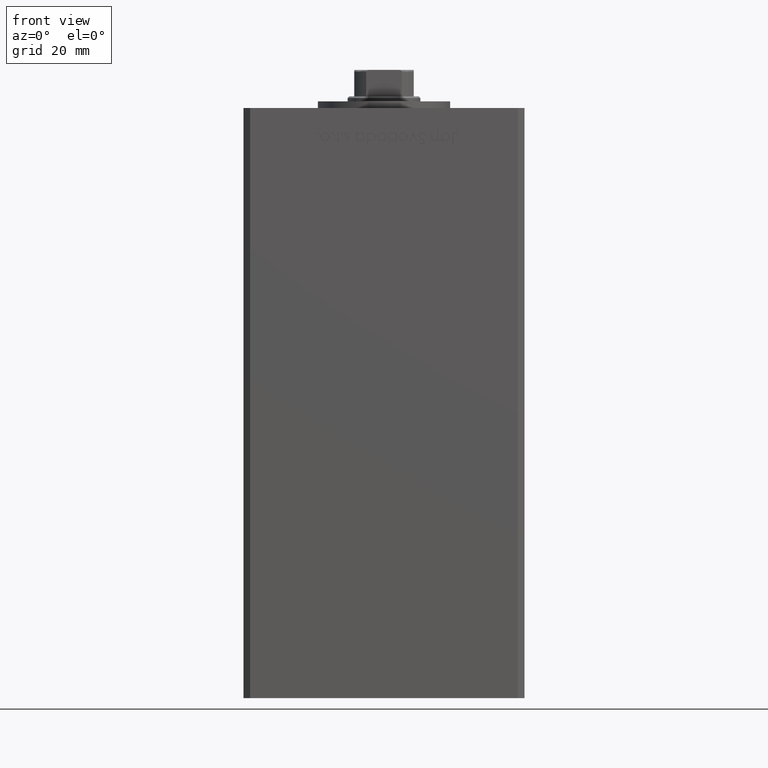
[diagram: clean part render]
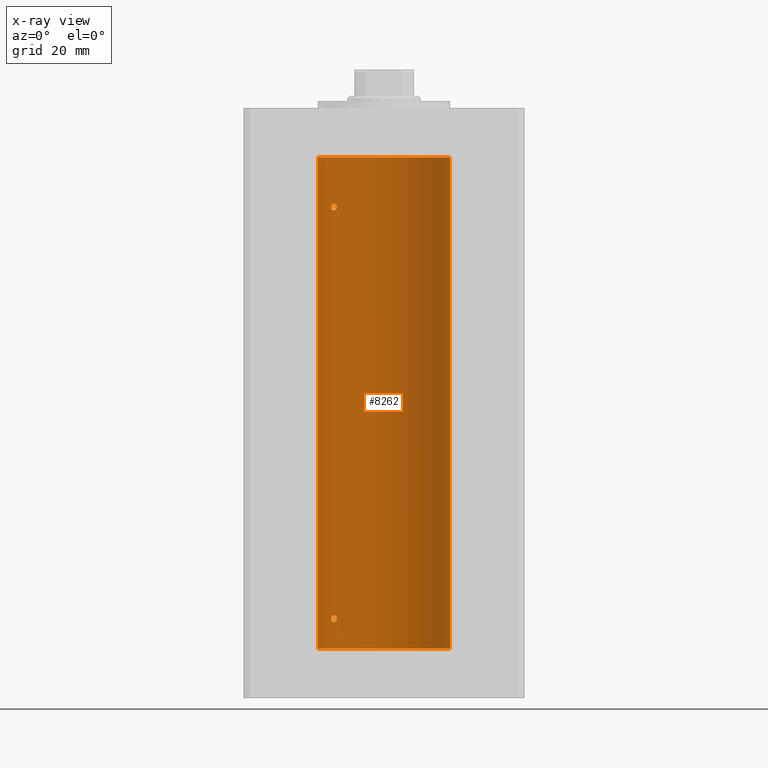
[diagram: x-ray — body ghosted, one internal face saturated and labeled with its STEP entity id]
A machine part, front view, then the same camera in x-ray: the body is ghosted and one INTERNAL B-rep face — a face not visible from any outside direction — is saturated and labeled: STEP entity #8262.
In plain terms, the highlighted cylindrical surface (partial cylindrical patch) has radius 20 mm, axis along (-0, -0, -1).
Its self-contained STEP definition (entity closure, byte-faithful):
#772 = CARTESIAN_POINT ( 'NONE',  ( -20.00000000000000000, 0.000000000000000000, 148.5000000000000000 ) ) ;
#1081 = AXIS2_PLACEMENT_3D ( 'NONE', #49455, #33627, #29947 ) ;
#1216 = DIRECTION ( 'NONE',  ( -0.000000000000000000, -0.000000000000000000, -1.000000000000000000 ) ) ;
#1471 = CARTESIAN_POINT ( 'NONE',  ( 0.000000000000000000, 0.000000000000000000, 148.5000000000000000 ) ) ;
#1690 = CARTESIAN_POINT ( 'NONE',  ( -14.40763032799400989, 13.87162499441319952, 9.495217475255243400 ) ) ;
#1954 = ORIENTED_EDGE ( 'NONE', *, *, #32260, .F. ) ;
#2619 = CARTESIAN_POINT ( 'NONE',  ( -14.43642497935765334, 13.84184969151371547, 132.9420533359229069 ) ) ;
#2637 = CARTESIAN_POINT ( 'NONE',  ( 20.00000000000000000, 2.449293598294706513E-15, 148.5000000000000000 ) ) ;
#2713 = VECTOR ( 'NONE', #16309, 1000.000000000000000 ) ;
#3151 = CARTESIAN_POINT ( 'NONE',  ( -15.28000793038419758, 12.90520882930644042, 134.5021502285312636 ) ) ;
#4137 = B_SPLINE_CURVE_WITH_KNOTS ( 'NONE', 3,
 ( #40739, #4604, #46257, #1690, #29132, #50224, #21984, #49697, #5383, #21468, #18028, #21718, #6163, #13283, #17244, #38085, #30174, #41782, #14066, #45746 ),
 .UNSPECIFIED., .F., .F.,
 ( 4, 2, 2, 2, 2, 2, 2, 2, 2, 4 ),
 ( 0.003644921977557299617, 0.004100339128177156109, 0.004328047703487083488, 0.004555756278797011734, 0.005011173429416868226, 0.005466590580036723851, 0.005922007730656580343, 0.006377424881276436835, 0.006832842031896293328, 0.007288259182516148953 ),
 .UNSPECIFIED. ) ;
#4604 = CARTESIAN_POINT ( 'NONE',  ( -14.28285685708573460, 14.00000000000003020, 9.152512609665841126 ) ) ;
#5154 = DIRECTION ( 'NONE',  ( -1.000000000000000000, 0.000000000000000000, 0.000000000000000000 ) ) ;
#5383 = CARTESIAN_POINT ( 'NONE',  ( -14.78630942130979342, 13.46798002156744545, 9.891415279583977593 ) ) ;
#6163 = CARTESIAN_POINT ( 'NONE',  ( -15.37869370082498044, 12.78737709343839057, 9.984378433483314552 ) ) ;
#6411 = CARTESIAN_POINT ( 'NONE',  ( -15.99999999999999645, 12.00000000000000711, 133.5000000000000000 ) ) ;
#6531 = CARTESIAN_POINT ( 'NONE',  ( -15.99999999999999645, 12.00000000000000533, 9.000000000000001776 ) ) ;
#6790 = CARTESIAN_POINT ( 'NONE',  ( -16.00000000000000355, 12.00000000000000711, 8.845692188641406162 ) ) ;
#7096 = CARTESIAN_POINT ( 'NONE',  ( -14.44276720520014656, 13.83508275448404312, 134.0540486626502741 ) ) ;
#7604 = AXIS2_PLACEMENT_3D ( 'NONE', #19509, #31676, #27691 ) ;
#7671 = VERTEX_POINT ( 'NONE', #15939 ) ;
#8262 = ADVANCED_FACE ( 'NONE', ( #19952, #12039, #35266 ), #51365, .F. ) ;
#8892 = CARTESIAN_POINT ( 'NONE',  ( -20.00000000000000000, 0.000000000000000000, 148.5000000000000000 ) ) ;
#9771 = ORIENTED_EDGE ( 'NONE', *, *, #20304, .F. ) ;
#10220 = CARTESIAN_POINT ( 'NONE',  ( -14.43642497935765512, 13.84184969151371547, 8.442053335922926394 ) ) ;
#10309 = VERTEX_POINT ( 'NONE', #23419 ) ;
#10743 = CARTESIAN_POINT ( 'NONE',  ( -14.51590294503183820, 13.75881262167379049, 8.336781207422363948 ) ) ;
#10759 = B_SPLINE_CURVE_WITH_KNOTS ( 'NONE', 3,
 ( #6531, #6790, #18139, #15225, #30817, #35275, #34244, #30556, #47415, #46894, #46374, #10743, #10220, #51373, #26325, #14441 ),
 .UNSPECIFIED., .F., .F.,
 ( 4, 2, 2, 2, 2, 2, 2, 4 ),
 ( 1.734723475976807094E-18, 0.0004556152471946670057, 0.0009112304943893322767, 0.001822460988778654796, 0.002278076235973315947, 0.002733691483167977315, 0.003189306730362638249, 0.003644921977557299617 ),
 .UNSPECIFIED. ) ;
#11082 = B_SPLINE_CURVE_WITH_KNOTS ( 'NONE', 3,
 ( #46931, #18176, #38235, #38767, #38501, #26094, #42458, #29806, #46675, #42187, #37965, #50370, #2619, #50897, #42719, #14746 ),
 .UNSPECIFIED., .F., .F.,
 ( 4, 2, 2, 2, 2, 2, 2, 4 ),
 ( 0.000000000000000000, 0.0004556152471946448338, 0.0009112304943892896676, 0.001822460988778623354, 0.002278076235973289926, 0.002733691483167956498, 0.003189306730362623070, 0.003644921977557289642 ),
 .UNSPECIFIED. ) ;
#11831 = CARTESIAN_POINT ( 'NONE',  ( -15.65267653428112027, 12.45028749062556983, 134.3454911519633868 ) ) ;
#12039 = FACE_BOUND ( 'NONE', #31815, .T. ) ;
#13283 = CARTESIAN_POINT ( 'NONE',  ( -15.56338254739985594, 12.56194079578775202, 9.906815049669283724 ) ) ;
#13974 = LINE ( 'NONE', #2637, #49620 ) ;
#14066 = CARTESIAN_POINT ( 'NONE',  ( -16.00000000000000355, 12.00000000000000888, 9.154240719993492092 ) ) ;
#14441 = CARTESIAN_POINT ( 'NONE',  ( -14.28285685708537756, 14.00000000000032863, 8.999999999999852562 ) ) ;
#14746 = CARTESIAN_POINT ( 'NONE',  ( -14.28285685708538111, 14.00000000000032685, 133.4999999999998579 ) ) ;
#14753 = CARTESIAN_POINT ( 'NONE',  ( -15.08229700616151625, 13.13572892147764826, 134.4974307527148198 ) ) ;
#15225 = CARTESIAN_POINT ( 'NONE',  ( -15.87710824431566614, 12.16238752415382152, 8.434921807322277587 ) ) ;
#15939 = CARTESIAN_POINT ( 'NONE',  ( -14.28285685708537756, 14.00000000000032863, 8.999999999999852562 ) ) ;
#16309 = DIRECTION ( 'NONE',  ( -0.000000000000000000, -0.000000000000000000, -1.000000000000000000 ) ) ;
#16788 = ORIENTED_EDGE ( 'NONE', *, *, #29600, .F. ) ;
#17244 = CARTESIAN_POINT ( 'NONE',  ( -15.65267653428113093, 12.45028749062556450, 9.845491151963429388 ) ) ;
#17447 = ORIENTED_EDGE ( 'NONE', *, *, #32137, .T. ) ;
#18028 = CARTESIAN_POINT ( 'NONE',  ( -15.08229700616151270, 13.13572892147766247, 9.997430752714780766 ) ) ;
#18139 = CARTESIAN_POINT ( 'NONE',  ( -15.97265980134107721, 12.03662641108511977, 8.695337314863895273 ) ) ;
#18176 = CARTESIAN_POINT ( 'NONE',  ( -15.99999999999999289, 12.00000000000000888, 133.3456921886414079 ) ) ;
#19117 = VERTEX_POINT ( 'NONE', #6411 ) ;
#19219 = CARTESIAN_POINT ( 'NONE',  ( -14.31936354392035149, 13.96291496472315785, 133.8044284570273419 ) ) ;
#19318 = VERTEX_POINT ( 'NONE', #48525 ) ;
#19509 = CARTESIAN_POINT ( 'NONE',  ( 0.000000000000000000, 0.000000000000000000, 148.5000000000000000 ) ) ;
#19743 = LINE ( 'NONE', #8892, #2713 ) ;
#19952 = FACE_OUTER_BOUND ( 'NONE', #21528, .T. ) ;
#20304 = EDGE_CURVE ( 'NONE', #44321, #19117, #48535, .T. ) ;
#20723 = EDGE_CURVE ( 'NONE', #29795, #19318, #36472, .T. ) ;
#21468 = CARTESIAN_POINT ( 'NONE',  ( -14.98188199575990254, 13.25008090651449244, 9.975236402857756701 ) ) ;
#21528 = EDGE_LOOP ( 'NONE', ( #16788, #17447, #26680, #37223 ) ) ;
#21718 = CARTESIAN_POINT ( 'NONE',  ( -15.28000793038418870, 12.90520882930645108, 10.00215022853122981 ) ) ;
#21984 = CARTESIAN_POINT ( 'NONE',  ( -14.56006338825494772, 13.71162570780885126, 9.705357955363313138 ) ) ;
#22659 = CARTESIAN_POINT ( 'NONE',  ( -15.99999999999999289, 12.00000000000001243, 133.6542407199934814 ) ) ;
#23419 = CARTESIAN_POINT ( 'NONE',  ( -15.99999999999999645, 12.00000000000000533, 9.000000000000001776 ) ) ;
#26094 = CARTESIAN_POINT ( 'NONE',  ( -15.57359523075762908, 12.55100654799543847, 132.5686142754107379 ) ) ;
#26254 = CARTESIAN_POINT ( 'NONE',  ( 20.00000000000000000, 2.449293598294706513E-15, 148.5000000000000000 ) ) ;
#26325 = CARTESIAN_POINT ( 'NONE',  ( -14.28285685708575414, 14.00000000000000000, 8.847421050659345809 ) ) ;
#26680 = ORIENTED_EDGE ( 'NONE', *, *, #37230, .T. ) ;
#26890 = CARTESIAN_POINT ( 'NONE',  ( -15.87665094074984573, 12.16298652314402595, 134.0660500660140144 ) ) ;
#27691 = DIRECTION ( 'NONE',  ( 1.000000000000000000, 0.000000000000000000, 0.000000000000000000 ) ) ;
#28992 = EDGE_LOOP ( 'NONE', ( #46919, #9771 ) ) ;
#29132 = CARTESIAN_POINT ( 'NONE',  ( -14.44276720520014123, 13.83508275448403957, 9.554048662650277635 ) ) ;
#29600 = EDGE_CURVE ( 'NONE', #39723, #29795, #13974, .T. ) ;
#29795 = VERTEX_POINT ( 'NONE', #32929 ) ;
#29806 = CARTESIAN_POINT ( 'NONE',  ( -15.08054978948643488, 13.13774395934156658, 132.5027765441529937 ) ) ;
#29947 = DIRECTION ( 'NONE',  ( 1.000000000000000000, 0.000000000000000000, 0.000000000000000000 ) ) ;
#30174 = CARTESIAN_POINT ( 'NONE',  ( -15.87665094074984928, 12.16298652314402950, 9.566050066014014419 ) ) ;
#30556 = CARTESIAN_POINT ( 'NONE',  ( -15.08054978948644198, 13.13774395934156836, 8.002776544152998994 ) ) ;
#30817 = CARTESIAN_POINT ( 'NONE',  ( -15.80909732170550441, 12.25106527276995649, 8.324451780901405584 ) ) ;
#31391 = CARTESIAN_POINT ( 'NONE',  ( -14.69171503997127104, 13.57092520311232420, 134.3305470397792760 ) ) ;
#31654 = CARTESIAN_POINT ( 'NONE',  ( -15.80861854366320074, 12.25167421322532668, 134.1760529919017131 ) ) ;
#31676 = DIRECTION ( 'NONE',  ( -0.000000000000000000, 0.000000000000000000, 1.000000000000000000 ) ) ;
#31815 = EDGE_LOOP ( 'NONE', ( #1954, #50409 ) ) ;
#32137 = EDGE_CURVE ( 'NONE', #39723, #35694, #35400, .T. ) ;
#32260 = EDGE_CURVE ( 'NONE', #10309, #7671, #10759, .T. ) ;
#32929 = CARTESIAN_POINT ( 'NONE',  ( 20.00000000000000000, 2.449293598294706513E-15, 0.000000000000000000 ) ) ;
#33627 = DIRECTION ( 'NONE',  ( -0.000000000000000000, 0.000000000000000000, 1.000000000000000000 ) ) ;
#34244 = CARTESIAN_POINT ( 'NONE',  ( -15.37869471769012897, 12.79018928545119671, 7.995165913711804073 ) ) ;
#35074 = CARTESIAN_POINT ( 'NONE',  ( -14.28285685708538111, 14.00000000000032685, 133.4999999999998579 ) ) ;
#35266 = FACE_BOUND ( 'NONE', #28992, .T. ) ;
#35275 = CARTESIAN_POINT ( 'NONE',  ( -15.57359523075763086, 12.55100654799543136, 8.068614275410753933 ) ) ;
#35322 = CARTESIAN_POINT ( 'NONE',  ( -14.40763032799402055, 13.87162499441319063, 133.9952174752553162 ) ) ;
#35400 = CIRCLE ( 'NONE', #7604, 20.00000000000000000 ) ;
#35694 = VERTEX_POINT ( 'NONE', #772 ) ;
#35851 = CARTESIAN_POINT ( 'NONE',  ( -15.37869370082499110, 12.78737709343838524, 134.4843784334833572 ) ) ;
#36472 = CIRCLE ( 'NONE', #1081, 20.00000000000000000 ) ;
#37039 = EDGE_CURVE ( 'NONE', #19117, #44321, #11082, .T. ) ;
#37223 = ORIENTED_EDGE ( 'NONE', *, *, #20723, .F. ) ;
#37230 = EDGE_CURVE ( 'NONE', #35694, #19318, #19743, .T. ) ;
#37965 = CARTESIAN_POINT ( 'NONE',  ( -14.69070843596622922, 13.57200975233015505, 132.6702647380768383 ) ) ;
#38085 = CARTESIAN_POINT ( 'NONE',  ( -15.80861854366319719, 12.25167421322532491, 9.676052991901704203 ) ) ;
#38235 = CARTESIAN_POINT ( 'NONE',  ( -15.97265980134107721, 12.03662641108512332, 133.1953373148639344 ) ) ;
#38501 = CARTESIAN_POINT ( 'NONE',  ( -15.80909732170550441, 12.25106527276996182, 132.8244517809013701 ) ) ;
#38767 = CARTESIAN_POINT ( 'NONE',  ( -15.87710824431565548, 12.16238752415382507, 132.9349218073222119 ) ) ;
#38772 = CARTESIAN_POINT ( 'NONE',  ( -15.99999999999999645, 12.00000000000000711, 133.5000000000000000 ) ) ;
#39037 = CARTESIAN_POINT ( 'NONE',  ( -14.56006338825495483, 13.71162570780885481, 134.2053579553633540 ) ) ;
#39723 = VERTEX_POINT ( 'NONE', #26254 ) ;
#40739 = CARTESIAN_POINT ( 'NONE',  ( -14.28285685708537756, 14.00000000000032863, 8.999999999999852562 ) ) ;
#41289 = AXIS2_PLACEMENT_3D ( 'NONE', #1471, #1216, #5154 ) ;
#41782 = CARTESIAN_POINT ( 'NONE',  ( -15.97258576326346713, 12.03672672663914689, 9.305137409213726229 ) ) ;
#42187 = CARTESIAN_POINT ( 'NONE',  ( -14.78531327857342959, 13.46907986586309924, 132.6090990069115207 ) ) ;
#42458 = CARTESIAN_POINT ( 'NONE',  ( -15.37869471769012542, 12.79018928545120204, 132.4951659137118156 ) ) ;
#42719 = CARTESIAN_POINT ( 'NONE',  ( -14.28285685708575770, 13.99999999999999822, 133.3474210506593636 ) ) ;
#42986 = CARTESIAN_POINT ( 'NONE',  ( -15.97258576326347068, 12.03672672663914867, 133.8051374092137280 ) ) ;
#44321 = VERTEX_POINT ( 'NONE', #45880 ) ;
#45746 = CARTESIAN_POINT ( 'NONE',  ( -15.99999999999999645, 12.00000000000000533, 9.000000000000001776 ) ) ;
#45880 = CARTESIAN_POINT ( 'NONE',  ( -14.28285685708538111, 14.00000000000032685, 133.4999999999998579 ) ) ;
#46257 = CARTESIAN_POINT ( 'NONE',  ( -14.31936354392034616, 13.96291496472316496, 9.304428457027322352 ) ) ;
#46374 = CARTESIAN_POINT ( 'NONE',  ( -14.69070843596623099, 13.57200975233014972, 8.170264738076779665 ) ) ;
#46429 = DIRECTION ( 'NONE',  ( -0.000000000000000000, -0.000000000000000000, -1.000000000000000000 ) ) ;
#46675 = CARTESIAN_POINT ( 'NONE',  ( -14.98166541227928761, 13.25033217142396325, 132.5247696149142769 ) ) ;
#46894 = CARTESIAN_POINT ( 'NONE',  ( -14.78531327857342781, 13.46907986586309569, 8.109099006911453245 ) ) ;
#46919 = ORIENTED_EDGE ( 'NONE', *, *, #37039, .F. ) ;
#46931 = CARTESIAN_POINT ( 'NONE',  ( -15.99999999999999645, 12.00000000000000711, 133.5000000000000000 ) ) ;
#46936 = CARTESIAN_POINT ( 'NONE',  ( -14.28285685708573105, 14.00000000000002665, 133.6525126096658767 ) ) ;
#47415 = CARTESIAN_POINT ( 'NONE',  ( -14.98166541227929116, 13.25033217142396325, 8.024769614914273319 ) ) ;
#47462 = CARTESIAN_POINT ( 'NONE',  ( -14.78630942130979697, 13.46798002156743479, 134.3914152795840096 ) ) ;
#47984 = CARTESIAN_POINT ( 'NONE',  ( -14.51882058315760204, 13.75524947942077958, 134.1587346592185952 ) ) ;
#48525 = CARTESIAN_POINT ( 'NONE',  ( -20.00000000000000000, 0.000000000000000000, 0.000000000000000000 ) ) ;
#48535 = B_SPLINE_CURVE_WITH_KNOTS ( 'NONE', 3,
 ( #35074, #46936, #19219, #35322, #7096, #47984, #39037, #31391, #47462, #51159, #14753, #3151, #35851, #51689, #11831, #31654, #26890, #42986, #22659, #38772 ),
 .UNSPECIFIED., .F., .F.,
 ( 4, 2, 2, 2, 2, 2, 2, 2, 2, 4 ),
 ( 0.003644921977557289642, 0.004100339128177169119, 0.004328047703487108641, 0.004555756278797049030, 0.005011173429416889910, 0.005466590580036730790, 0.005922007730656571670, 0.006377424881276412549, 0.006832842031896252562, 0.007288259182516093442 ),
 .UNSPECIFIED. ) ;
#49455 = CARTESIAN_POINT ( 'NONE',  ( 0.000000000000000000, 0.000000000000000000, 0.000000000000000000 ) ) ;
#49620 = VECTOR ( 'NONE', #46429, 1000.000000000000000 ) ;
#49697 = CARTESIAN_POINT ( 'NONE',  ( -14.69171503997126571, 13.57092520311232420, 9.830547039779306218 ) ) ;
#50202 = EDGE_CURVE ( 'NONE', #7671, #10309, #4137, .T. ) ;
#50224 = CARTESIAN_POINT ( 'NONE',  ( -14.51882058315760027, 13.75524947942078313, 9.658734659218600527 ) ) ;
#50370 = CARTESIAN_POINT ( 'NONE',  ( -14.51590294503182932, 13.75881262167379404, 132.8367812074223764 ) ) ;
#50409 = ORIENTED_EDGE ( 'NONE', *, *, #50202, .F. ) ;
#50897 = CARTESIAN_POINT ( 'NONE',  ( -14.31871019372461085, 13.96358505023716212, 133.1974785395779008 ) ) ;
#51159 = CARTESIAN_POINT ( 'NONE',  ( -14.98188199575990964, 13.25008090651448178, 134.4752364028577460 ) ) ;
#51365 = CYLINDRICAL_SURFACE ( 'NONE', #41289, 20.00000000000000000 ) ;
#51373 = CARTESIAN_POINT ( 'NONE',  ( -14.31871019372461795, 13.96358505023715679, 8.697478539577890189 ) ) ;
#51689 = CARTESIAN_POINT ( 'NONE',  ( -15.56338254739985949, 12.56194079578775025, 134.4068150496692908 ) ) ;